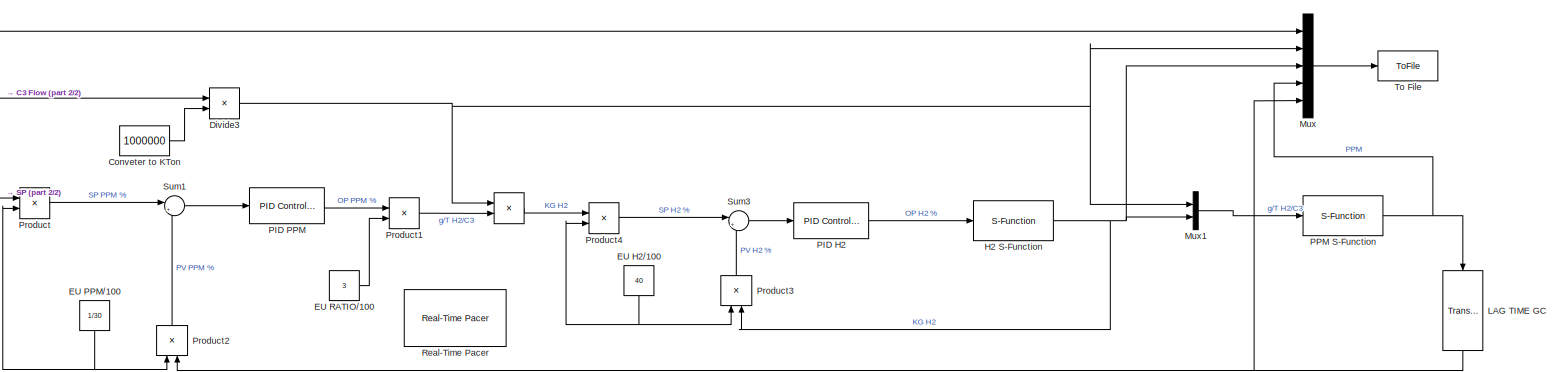
[diagram: root canvas - part 1/2, most of the canvas]
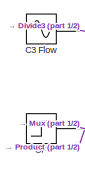
[diagram: root canvas - part 2/2, middle left region]
MODEL slx_c5444f192ad1
KIND model
CONFIG AbsTol = auto
CONFIG EnableMultiTasking = off
CONFIG FixedStep = auto
CONFIG MaxStep = auto
CONFIG MinStep = auto
CONFIG RelTol = 1e-3
CONFIG SampleTimeConstraint = Unconstrained
CONFIG SolverName = VariableStepAuto
CONFIG StartTime = 0.0
CONFIG StopTime = 2400
BLOCK [Product]  
  Ports = [2, 1]
BLOCK [Sin] C3 Flow
  Amplitude = 1000
  Bias = 16000
  Frequency = 1/2.5
  Ports = [0, 1]
  SampleTime = 0
BLOCK [Constant] Conveter to KTon
  Value = 1000000
BLOCK [Product] Divide3
  Inputs = */
  Ports = [2, 1]
BLOCK [Constant] EU H2//100
  NameLocation = right
  Value = 40
BLOCK [Constant] EU PPM//100
  NameLocation = left
  Value = 1/30
BLOCK [Constant] EU RATIO//100
  Value = 3
BLOCK [S-Function] H2 S-Function
  EnableBusSupport = off
  FunctionName = sfunFC
  Ports = [1, 1]
  SFcnIsStateOwnerBlock = off
  SFunctionDeploymentMode = off
BLOCK [TransportDelay] LAG TIME GC  
  DelayTime = 13
  NameLocation = left
  Ports = [1, 1]
BLOCK [Mux] Mux
  DisplayOption = bar
  Inputs = 5
  Ports = [5, 1]
BLOCK [Mux] Mux1
  DisplayOption = bar
  Inputs = 2
  Ports = [2, 1]
BLOCK [Reference] PID H2  REF=pid_lib/PID Controller
  Ports = [1, 1]
  SourceBlock = pid_lib/PID Controller
  SourceProductBaseCode = SL
  SourceType = PID 1dof
BLOCK [Reference] PID PPM  REF=pid_lib/PID Controller
  Ports = [1, 1]
  SourceBlock = pid_lib/PID Controller
  SourceProductBaseCode = SL
  SourceType = PID 1dof
BLOCK [S-Function] PPM S-Function
  EnableBusSupport = off
  FunctionName = sfunppmprocess
  Ports = [1, 1]
  SFcnIsStateOwnerBlock = off
  SFunctionDeploymentMode = off
BLOCK [Product] Product
  Ports = [2, 1]
BLOCK [Product] Product1
  Ports = [2, 1]
BLOCK [Product] Product2
  NameLocation = right
  Ports = [2, 1]
BLOCK [Product] Product3
  NameLocation = right
  Ports = [2, 1]
BLOCK [Product] Product4
  Ports = [2, 1]
BLOCK [Reference] Real-Time Pacer  REF=realtime_pacer_lib/Real-Time Pacer
  Ports = []
  SourceBlock = realtime_pacer_lib/Real-Time Pacer
  SourceType = RealTime_Pacer
BLOCK [Step] SP
  After = 650
  Before = 600
  SampleTime = 0
  Time = 1200
BLOCK [Sum] Sum1
  Inputs = |+-
  Ports = [2, 1]
BLOCK [Sum] Sum3
  Inputs = |+-
  Ports = [2, 1]
BLOCK [ToFile] To File
  Filename = data2.mat
  MatrixName = ppm
  Ports = [1]
LINE  :1 -> Product4:1
LINE C3 Flow:1 -> Divide3:1
LINE Conveter to KTon:1 -> Divide3:2
NET Divide3:1 ->  :1, Mux1:1, Mux:2
NET EU H2//100:1 -> Product3:1, Product4:2
NET EU PPM//100:1 -> Product2:1, Product:2
LINE EU RATIO//100:1 -> Product1:2
NET H2 S-Function:1 -> Mux1:2, Mux:3, Product3:2
NET LAG TIME GC  :1 -> Mux:5, Product2:2
LINE Mux1:1 -> PPM S-Function:1
LINE Mux:1 -> To File:1
LINE PID H2:1 -> H2 S-Function:1
LINE PID PPM:1 -> Product1:1
NET PPM S-Function:1 -> LAG TIME GC  :1, Mux:4
LINE Product1:1 ->  :2
LINE Product2:1 -> Sum1:2
LINE Product3:1 -> Sum3:2
LINE Product4:1 -> Sum3:1
LINE Product:1 -> Sum1:1
NET SP:1 -> Mux:1, Product:1
LINE Sum1:1 -> PID PPM:1
LINE Sum3:1 -> PID H2:1
note: NET lines group one-source signal fan-out (src -> all destinations, sorted); 1:1 wires keep LINE
